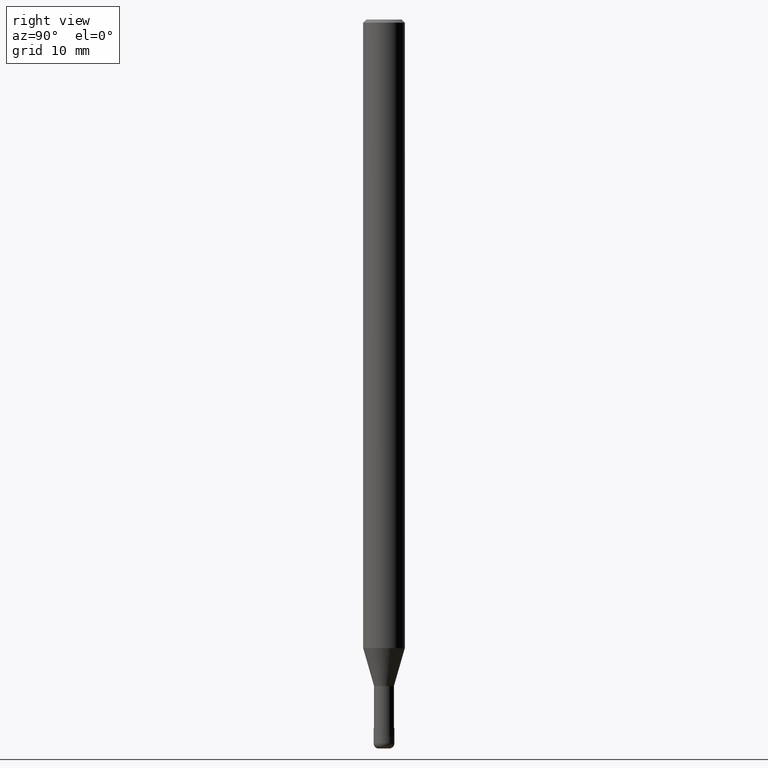
[diagram: clean part render]
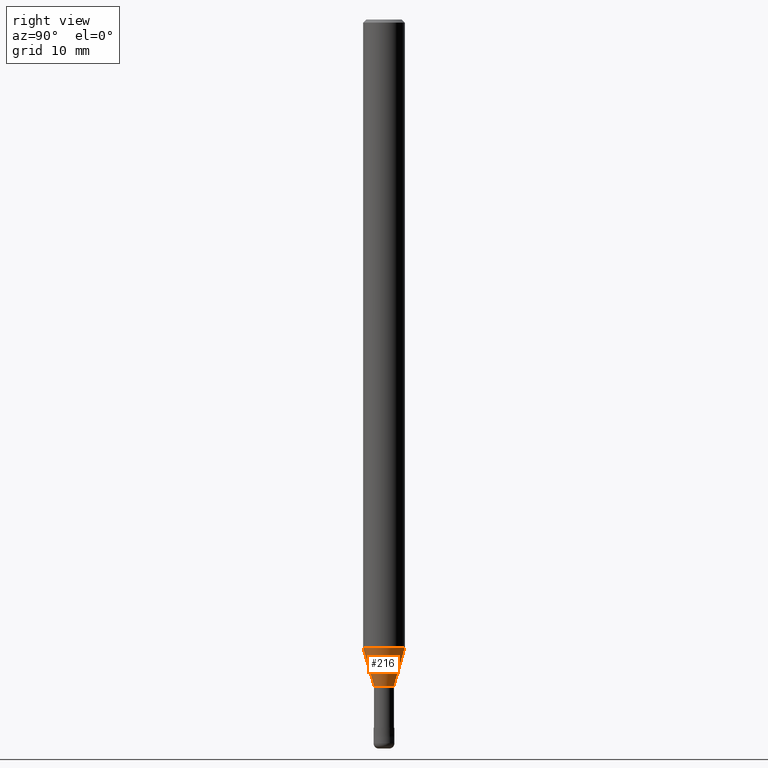
[diagram: same view with one face highlighted and labeled with its STEP entity id]
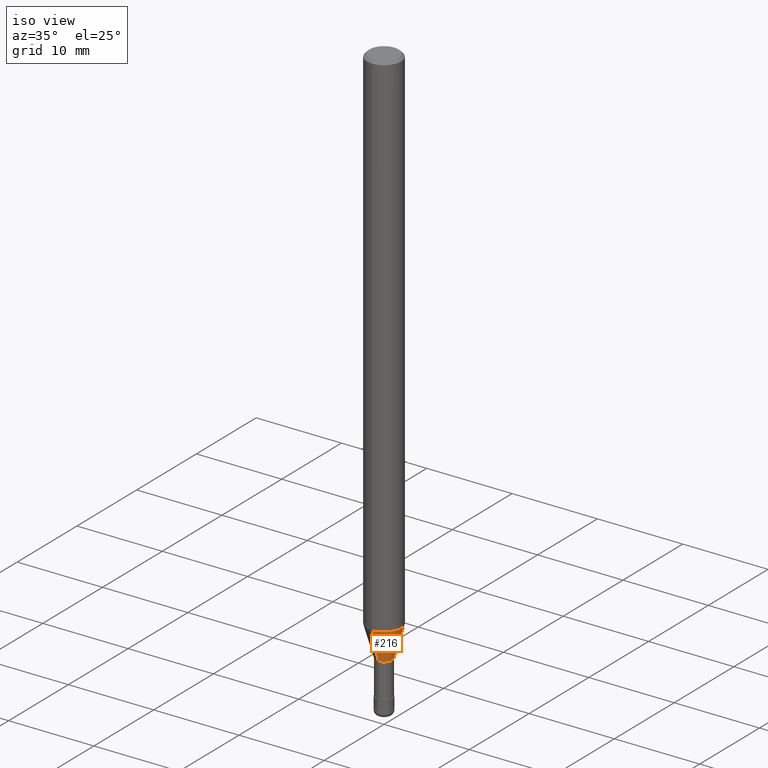
[diagram: same view with one face highlighted and labeled with its STEP entity id]
A machine part, right view. The second image highlights one B-rep face of the part: STEP entity #216.
A second angle (iso view) of the same face is appended — the face is thin or edge-on in the first view.
In plain terms, the highlighted conical surface has half-angle 16.001 deg.
Its self-contained STEP definition (entity closure, byte-faithful):
#116=EDGE_CURVE('',#120,#172,#271,.T.);
#120=VERTEX_POINT('',#275);
#172=VERTEX_POINT('',#336);
#174=VERTEX_POINT('',#338);
#202=VERTEX_POINT('',#367);
#214=EDGE_CURVE('',#202,#174,#380,.T.);
#216=ADVANCED_FACE('',(#382),#383,.T.);
#218=EDGE_CURVE('',#202,#120,#385,.T.);
#220=EDGE_CURVE('',#172,#174,#387,.T.);
#271=CIRCLE('',#438,0.95495);
#275=CARTESIAN_POINT('',(0.0,0.95495,-64.0));
#336=CARTESIAN_POINT('',(1.16943783758268E-016,-0.95495,-64.0));
#338=CARTESIAN_POINT('',(2.44915147732706E-016,-1.99995,-60.356));
#367=CARTESIAN_POINT('',(0.0,1.99995,-60.356));
#380=CIRCLE('',#575,1.99995);
#382=FACE_OUTER_BOUND('',#577,.T.);
#383=CONICAL_SURFACE('',#578,1.47745,0.279277990456152);
#385=LINE('',#581,#582);
#387=LINE('',#585,#586);
#438=AXIS2_PLACEMENT_3D('',#630,#631,#632);
#575=AXIS2_PLACEMENT_3D('',#757,#758,#759);
#577=EDGE_LOOP('',(#761,#762,#763,#764));
#578=AXIS2_PLACEMENT_3D('',#765,#766,#767);
#581=CARTESIAN_POINT('',(-1.80929465745487E-016,1.47745,-62.178));
#582=VECTOR('',#768,1.0);
#585=CARTESIAN_POINT('',(1.80929465745487E-016,-1.47745,-62.178));
#586=VECTOR('',#769,1.0);
#630=CARTESIAN_POINT('',(0.0,0.0,-64.0));
#631=DIRECTION('',(0.0,0.0,-1.0));
#632=DIRECTION('',(0.0,1.0,0.0));
#757=CARTESIAN_POINT('',(0.0,0.0,-60.356));
#758=DIRECTION('',(0.0,0.0,-1.0));
#759=DIRECTION('',(0.0,1.0,0.0));
#761=ORIENTED_EDGE('',*,*,#218,.F.);
#762=ORIENTED_EDGE('',*,*,#214,.T.);
#763=ORIENTED_EDGE('',*,*,#220,.F.);
#764=ORIENTED_EDGE('',*,*,#116,.F.);
#765=CARTESIAN_POINT('',(0.0,0.0,-62.178));
#766=DIRECTION('',(-0.0,-0.0,1.0));
#767=DIRECTION('',(0.0,1.0,0.0));
#768=DIRECTION('',(3.37577051438857E-017,-0.275661685393983,-0.961254719211172));
#769=DIRECTION('',(3.37577051438857E-017,-0.275661685393983,0.961254719211172));